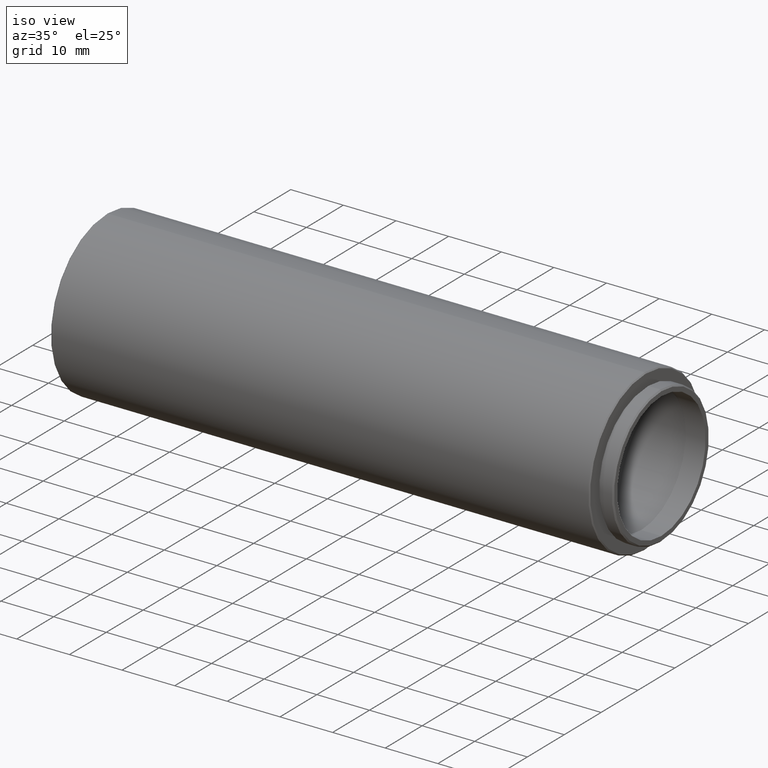
[diagram: clean part render]
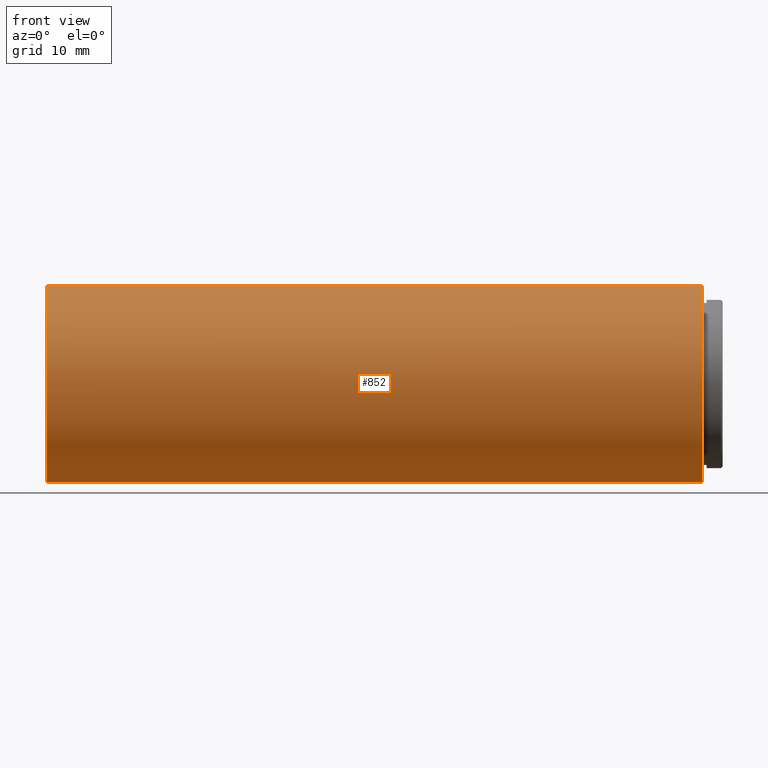
[diagram: tour spotlight — one face highlighted and labeled with its STEP entity id]
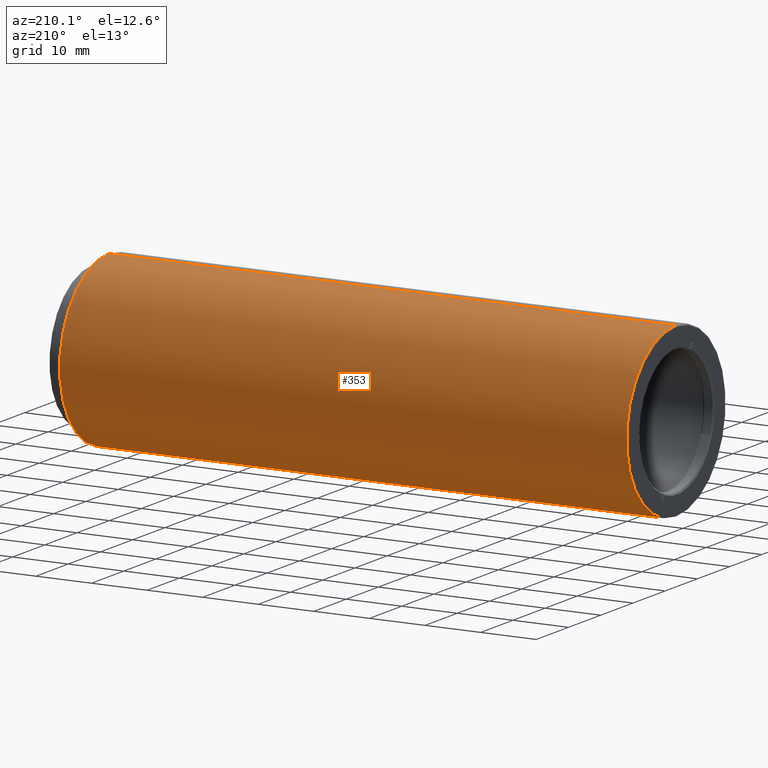
[diagram: tour spotlight — one face highlighted and labeled with its STEP entity id]
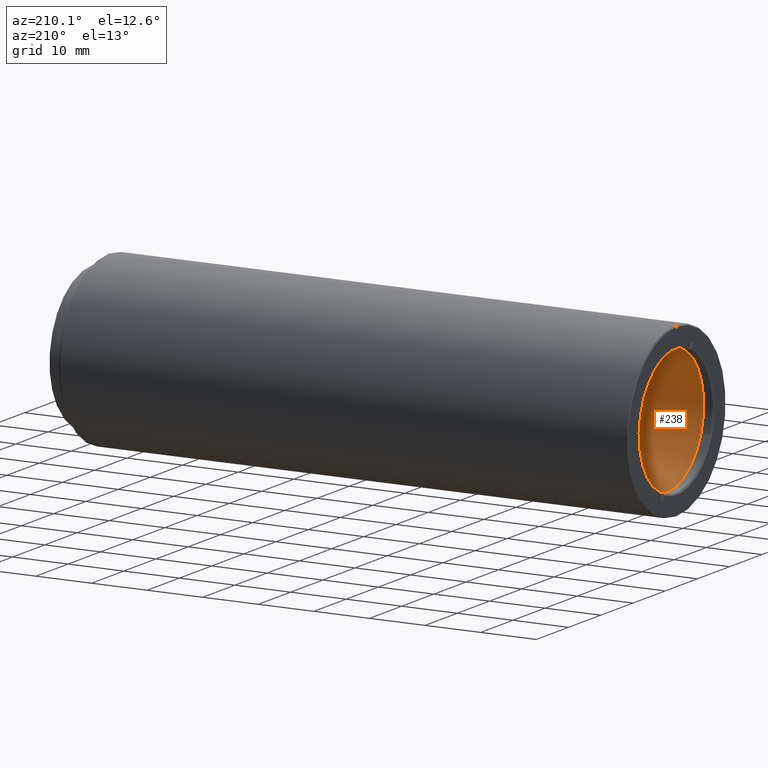
[diagram: tour spotlight — one face highlighted and labeled with its STEP entity id]
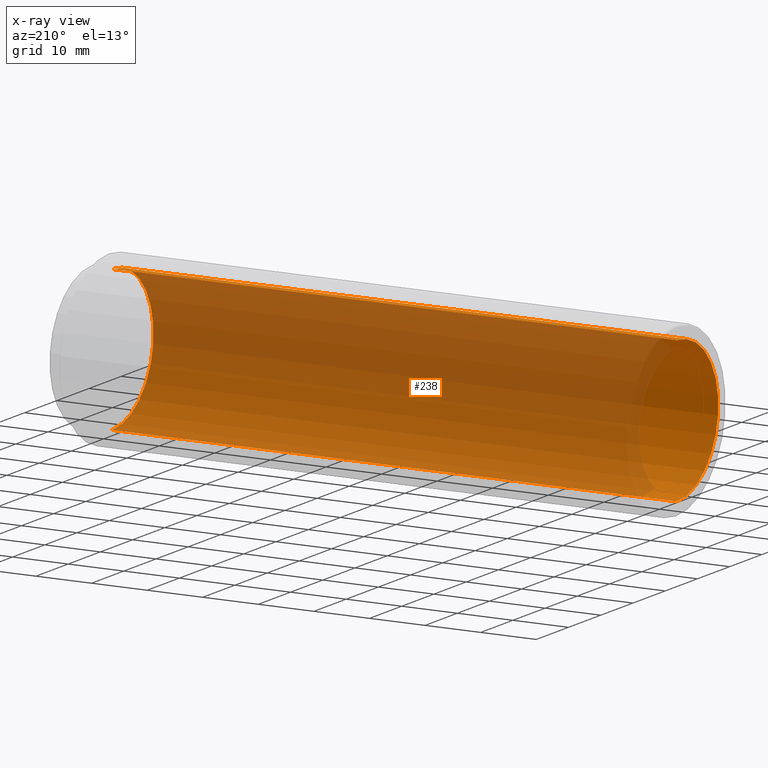
[diagram: x-ray of the same camera — body ghosted, this tour face saturated]
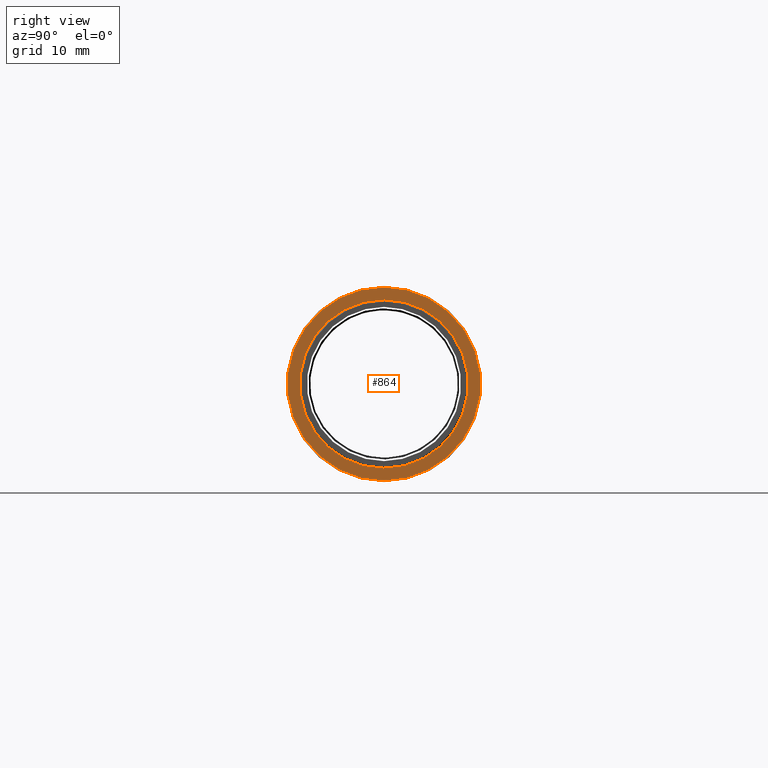
[diagram: tour spotlight — one face highlighted and labeled with its STEP entity id]
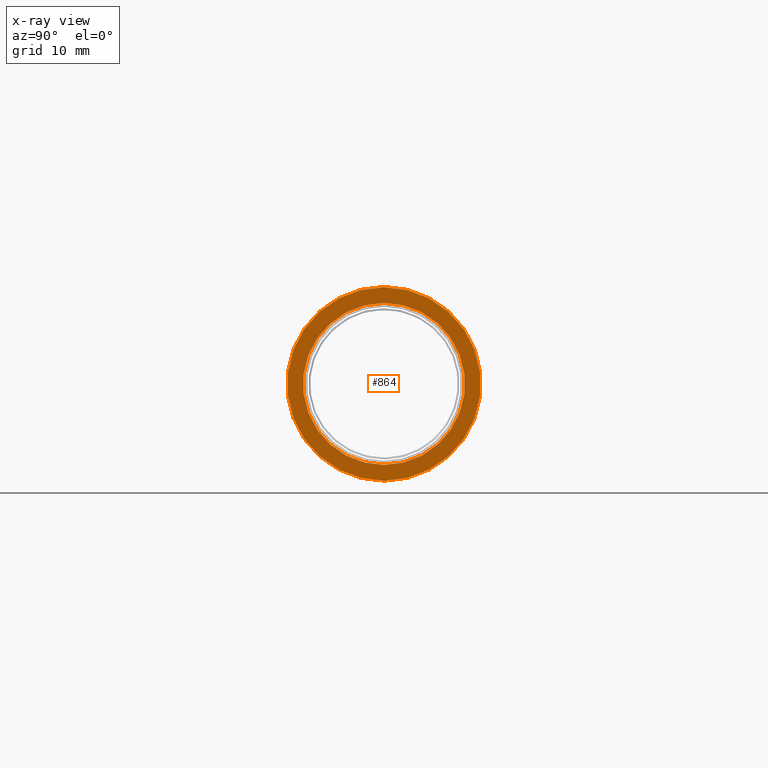
[diagram: x-ray of the same camera — body ghosted, this tour face saturated]
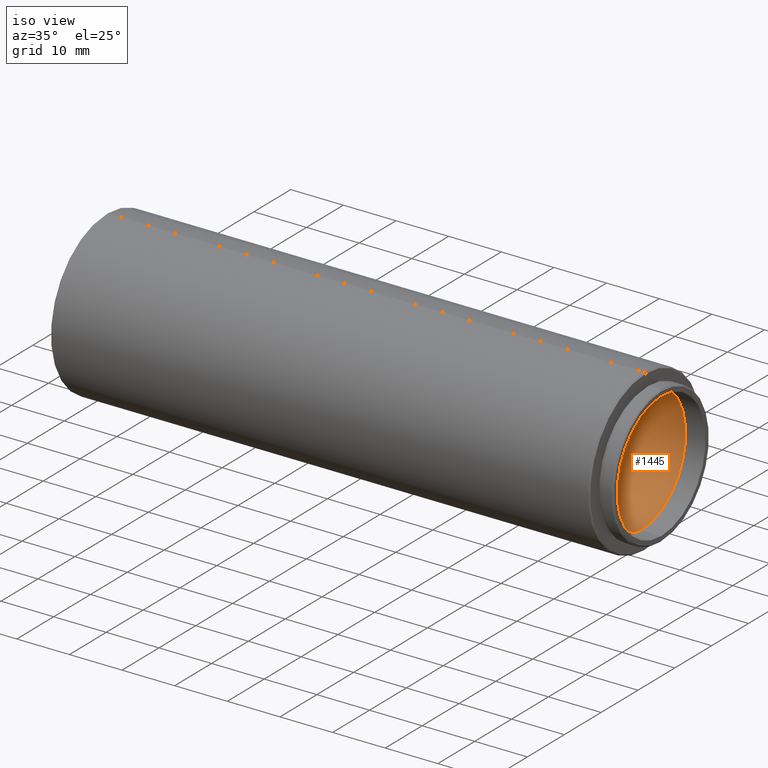
[diagram: tour spotlight — one face highlighted and labeled with its STEP entity id]
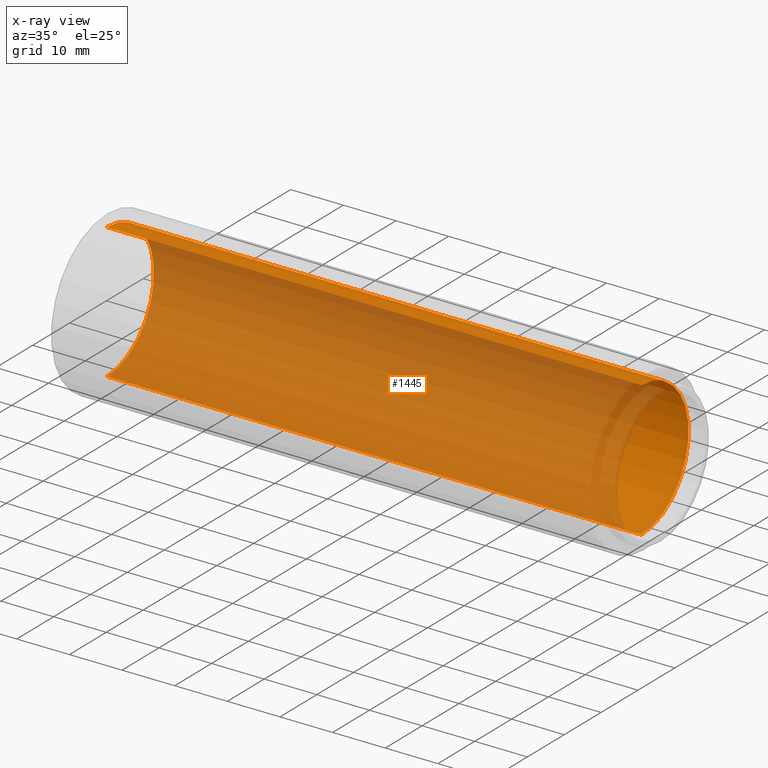
[diagram: x-ray of the same camera — body ghosted, this tour face saturated]
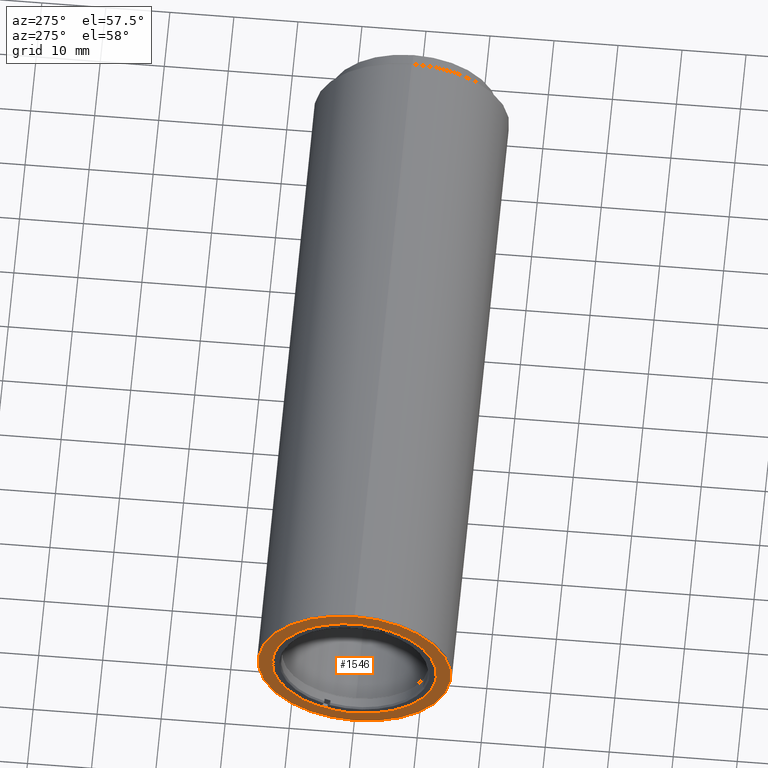
[diagram: tour spotlight — one face highlighted and labeled with its STEP entity id]
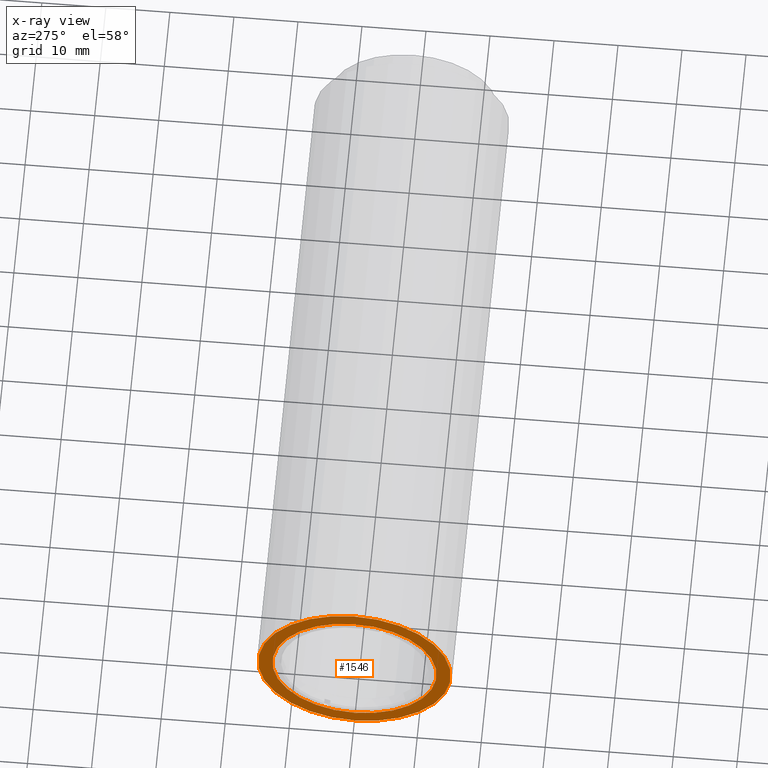
[diagram: x-ray of the same camera — body ghosted, this tour face saturated]
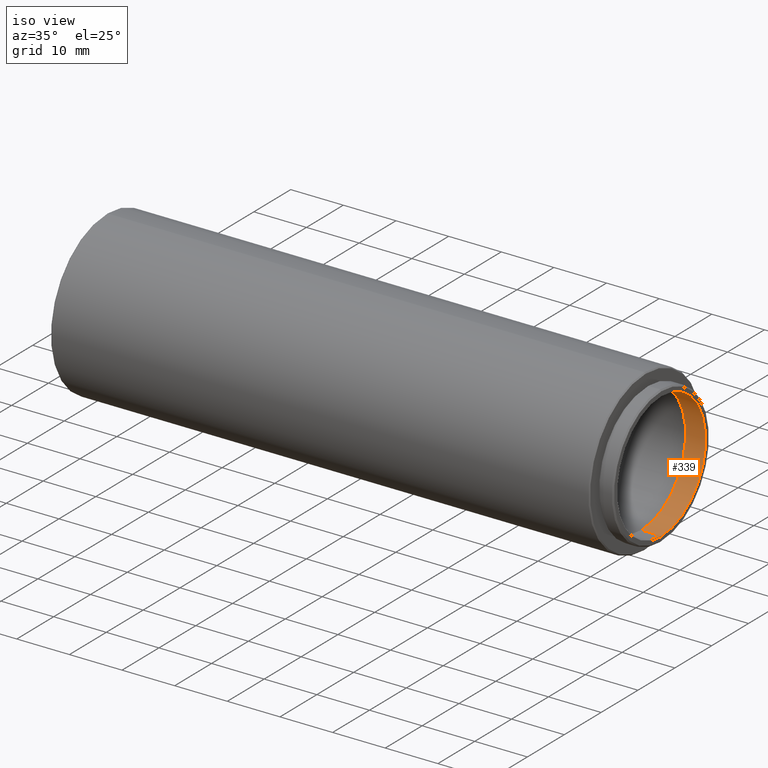
[diagram: tour spotlight — one face highlighted and labeled with its STEP entity id]
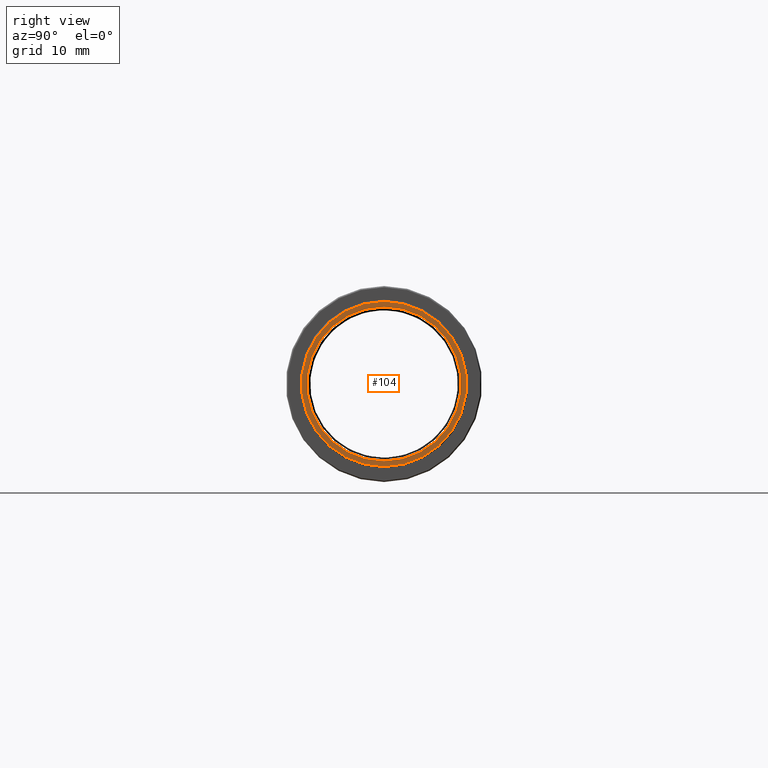
[diagram: tour spotlight — one face highlighted and labeled with its STEP entity id]
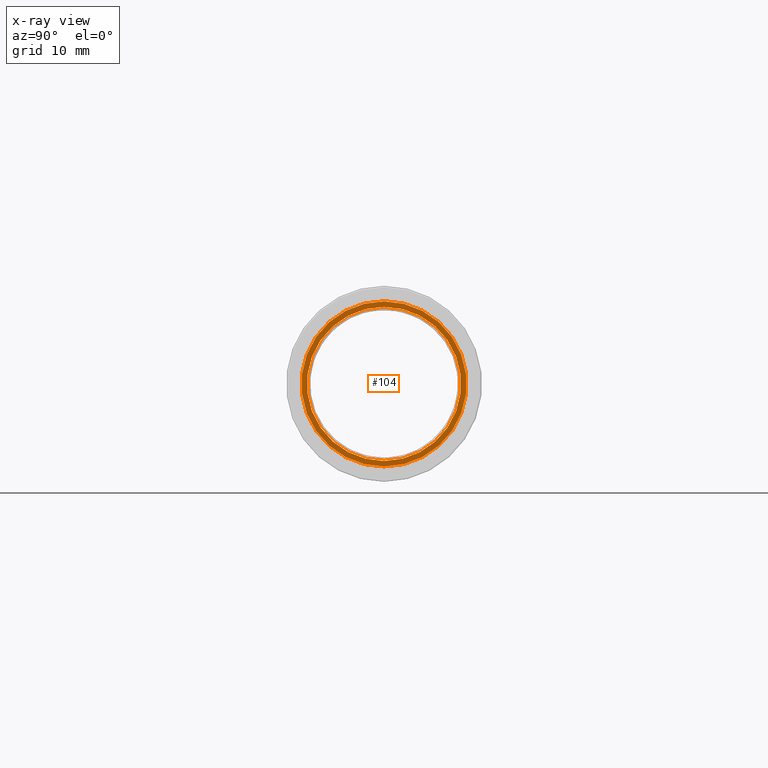
[diagram: x-ray of the same camera — body ghosted, this tour face saturated]
A machine part: a face-by-face anatomy tour. The part has 34 B-rep faces; the first image is the clean iso view, then the 8 largest visible faces are spotlighted one at a time (largest first), each with its STEP entity span.

Face 1 — front view, entity #852. In plain terms, the highlighted cylindrical surface (partial cylindrical patch) has radius 15.25 mm, axis along (-1, -0, -0).
Definition (entity closure, byte-faithful):
#35 = EDGE_CURVE ( 'NONE', #1018, #506, #1449, .T. ) ;
#115 = ORIENTED_EDGE ( 'NONE', *, *, #303, .T. ) ;
#116 = ORIENTED_EDGE ( 'NONE', *, *, #350, .T. ) ;
#136 = CARTESIAN_POINT ( 'NONE',  ( 3.325999999999985857, -20.10857142857141611, -15.25000000000000000 ) ) ;
#246 = CARTESIAN_POINT ( 'NONE',  ( -98.67400000000000659, -20.10857142857141966, 0.000000000000000000 ) ) ;
#303 = EDGE_CURVE ( 'NONE', #506, #480, #826, .T. ) ;
#350 = EDGE_CURVE ( 'NONE', #1398, #1018, #500, .T. ) ;
#351 = DIRECTION ( 'NONE',  ( -1.000000000000000000, -0.000000000000000000, -0.000000000000000000 ) ) ;
#411 = DIRECTION ( 'NONE',  ( -1.000000000000000000, -0.000000000000000000, -0.000000000000000000 ) ) ;
#480 = VERTEX_POINT ( 'NONE', #632 ) ;
#500 = CIRCLE ( 'NONE', #570, 15.25000000000000000 ) ;
#501 = EDGE_CURVE ( 'NONE', #1398, #480, #533, .T. ) ;
#506 = VERTEX_POINT ( 'NONE', #1374 ) ;
#530 = CARTESIAN_POINT ( 'NONE',  ( 3.325999999999985857, -20.10857142857141966, 15.25000000000000000 ) ) ;
#533 = LINE ( 'NONE', #769, #1353 ) ;
#570 = AXIS2_PLACEMENT_3D ( 'NONE', #735, #961, #1454 ) ;
#585 = CYLINDRICAL_SURFACE ( 'NONE', #667, 15.25000000000000000 ) ;
#610 = EDGE_LOOP ( 'NONE', ( #633, #116, #646, #115 ) ) ;
#632 = CARTESIAN_POINT ( 'NONE',  ( -98.67400000000000659, -20.10857142857141966, -15.25000000000000000 ) ) ;
#633 = ORIENTED_EDGE ( 'NONE', *, *, #501, .F. ) ;
#646 = ORIENTED_EDGE ( 'NONE', *, *, #35, .T. ) ;
#667 = AXIS2_PLACEMENT_3D ( 'NONE', #1208, #351, #1448 ) ;
#719 = DIRECTION ( 'NONE',  ( 1.000000000000000000, 0.000000000000000000, 0.000000000000000000 ) ) ;
#735 = CARTESIAN_POINT ( 'NONE',  ( 3.325999999999985857, -20.10857142857141966, 0.000000000000000000 ) ) ;
#769 = CARTESIAN_POINT ( 'NONE',  ( 3.525999999999982926, -20.10857142857141611, -15.25000000000000000 ) ) ;
#826 = CIRCLE ( 'NONE', #1098, 15.25000000000000000 ) ;
#852 = ADVANCED_FACE ( 'NONE', ( #1327 ), #585, .T. ) ;
#855 = DIRECTION ( 'NONE',  ( 0.000000000000000000, 0.000000000000000000, 1.000000000000000000 ) ) ;
#887 = VECTOR ( 'NONE', #411, 1000.000000000000000 ) ;
#961 = DIRECTION ( 'NONE',  ( -1.000000000000000000, 0.000000000000000000, 0.000000000000000000 ) ) ;
#1018 = VERTEX_POINT ( 'NONE', #530 ) ;
#1098 = AXIS2_PLACEMENT_3D ( 'NONE', #246, #719, #855 ) ;
#1119 = DIRECTION ( 'NONE',  ( -1.000000000000000000, -0.000000000000000000, -0.000000000000000000 ) ) ;
#1208 = CARTESIAN_POINT ( 'NONE',  ( 3.525999999999982926, -20.10857142857141966, 0.000000000000000000 ) ) ;
#1272 = CARTESIAN_POINT ( 'NONE',  ( 3.525999999999982926, -20.10857142857141966, 15.25000000000000000 ) ) ;
#1327 = FACE_OUTER_BOUND ( 'NONE', #610, .T. ) ;
#1353 = VECTOR ( 'NONE', #1119, 1000.000000000000000 ) ;
#1374 = CARTESIAN_POINT ( 'NONE',  ( -98.67400000000000659, -20.10857142857141611, 15.25000000000000000 ) ) ;
#1398 = VERTEX_POINT ( 'NONE', #136 ) ;
#1448 = DIRECTION ( 'NONE',  ( 0.000000000000000000, 0.000000000000000000, 1.000000000000000000 ) ) ;
#1449 = LINE ( 'NONE', #1272, #887 ) ;
#1454 = DIRECTION ( 'NONE',  ( 0.000000000000000000, 0.000000000000000000, -1.000000000000000000 ) ) ;

Face 2 — auxiliary view, entity #353. In plain terms, the highlighted cylindrical surface (partial cylindrical patch) has radius 15.25 mm, axis along (-1, -0, -0).
Definition (entity closure, byte-faithful):
#35 = EDGE_CURVE ( 'NONE', #1018, #506, #1449, .T. ) ;
#41 = DIRECTION ( 'NONE',  ( 1.000000000000000000, 0.000000000000000000, 0.000000000000000000 ) ) ;
#83 = EDGE_CURVE ( 'NONE', #480, #506, #1114, .T. ) ;
#109 = DIRECTION ( 'NONE',  ( 0.000000000000000000, 0.000000000000000000, 1.000000000000000000 ) ) ;
#121 = AXIS2_PLACEMENT_3D ( 'NONE', #730, #1085, #109 ) ;
#136 = CARTESIAN_POINT ( 'NONE',  ( 3.325999999999985857, -20.10857142857141611, -15.25000000000000000 ) ) ;
#142 = AXIS2_PLACEMENT_3D ( 'NONE', #1244, #41, #876 ) ;
#286 = DIRECTION ( 'NONE',  ( -1.000000000000000000, 0.000000000000000000, 0.000000000000000000 ) ) ;
#353 = ADVANCED_FACE ( 'NONE', ( #1533 ), #1131, .T. ) ;
#411 = DIRECTION ( 'NONE',  ( -1.000000000000000000, -0.000000000000000000, -0.000000000000000000 ) ) ;
#466 = ORIENTED_EDGE ( 'NONE', *, *, #35, .F. ) ;
#480 = VERTEX_POINT ( 'NONE', #632 ) ;
#501 = EDGE_CURVE ( 'NONE', #1398, #480, #533, .T. ) ;
#506 = VERTEX_POINT ( 'NONE', #1374 ) ;
#521 = EDGE_CURVE ( 'NONE', #1018, #1398, #1149, .T. ) ;
#530 = CARTESIAN_POINT ( 'NONE',  ( 3.325999999999985857, -20.10857142857141966, 15.25000000000000000 ) ) ;
#533 = LINE ( 'NONE', #769, #1353 ) ;
#632 = CARTESIAN_POINT ( 'NONE',  ( -98.67400000000000659, -20.10857142857141966, -15.25000000000000000 ) ) ;
#644 = ORIENTED_EDGE ( 'NONE', *, *, #501, .T. ) ;
#730 = CARTESIAN_POINT ( 'NONE',  ( 3.525999999999982926, -20.10857142857141966, 0.000000000000000000 ) ) ;
#769 = CARTESIAN_POINT ( 'NONE',  ( 3.525999999999982926, -20.10857142857141611, -15.25000000000000000 ) ) ;
#851 = ORIENTED_EDGE ( 'NONE', *, *, #521, .T. ) ;
#876 = DIRECTION ( 'NONE',  ( 0.000000000000000000, 0.000000000000000000, 1.000000000000000000 ) ) ;
#887 = VECTOR ( 'NONE', #411, 1000.000000000000000 ) ;
#898 = DIRECTION ( 'NONE',  ( 0.000000000000000000, 0.000000000000000000, -1.000000000000000000 ) ) ;
#1018 = VERTEX_POINT ( 'NONE', #530 ) ;
#1085 = DIRECTION ( 'NONE',  ( -1.000000000000000000, -0.000000000000000000, -0.000000000000000000 ) ) ;
#1114 = CIRCLE ( 'NONE', #142, 15.25000000000000000 ) ;
#1119 = DIRECTION ( 'NONE',  ( -1.000000000000000000, -0.000000000000000000, -0.000000000000000000 ) ) ;
#1131 = CYLINDRICAL_SURFACE ( 'NONE', #121, 15.25000000000000000 ) ;
#1149 = CIRCLE ( 'NONE', #1300, 15.25000000000000000 ) ;
#1244 = CARTESIAN_POINT ( 'NONE',  ( -98.67400000000000659, -20.10857142857141966, 0.000000000000000000 ) ) ;
#1264 = EDGE_LOOP ( 'NONE', ( #851, #644, #1498, #466 ) ) ;
#1272 = CARTESIAN_POINT ( 'NONE',  ( 3.525999999999982926, -20.10857142857141966, 15.25000000000000000 ) ) ;
#1283 = CARTESIAN_POINT ( 'NONE',  ( 3.325999999999985857, -20.10857142857141966, 0.000000000000000000 ) ) ;
#1300 = AXIS2_PLACEMENT_3D ( 'NONE', #1283, #286, #898 ) ;
#1353 = VECTOR ( 'NONE', #1119, 1000.000000000000000 ) ;
#1374 = CARTESIAN_POINT ( 'NONE',  ( -98.67400000000000659, -20.10857142857141611, 15.25000000000000000 ) ) ;
#1398 = VERTEX_POINT ( 'NONE', #136 ) ;
#1449 = LINE ( 'NONE', #1272, #887 ) ;
#1498 = ORIENTED_EDGE ( 'NONE', *, *, #83, .T. ) ;
#1533 = FACE_OUTER_BOUND ( 'NONE', #1264, .T. ) ;

Face 3 — auxiliary view, entity #238. An x-ray twin of the same camera follows (body ghosted, this face saturated) — the face is partly hidden behind the body. In plain terms, the highlighted cylindrical surface (partial cylindrical patch) has radius 12.827 mm, axis along (1, -0, -0).
Definition (entity closure, byte-faithful):
#16 = EDGE_LOOP ( 'NONE', ( #526, #977, #833, #257 ) ) ;
#57 = CARTESIAN_POINT ( 'NONE',  ( -98.87400000000002365, -20.10857142857141966, -12.82699999999999818 ) ) ;
#143 = DIRECTION ( 'NONE',  ( -1.000000000000000000, 0.000000000000000000, 0.000000000000000000 ) ) ;
#149 = CARTESIAN_POINT ( 'NONE',  ( -98.87400000000002365, -20.10857142857141966, 12.82699999999999818 ) ) ;
#156 = VERTEX_POINT ( 'NONE', #1407 ) ;
#231 = DIRECTION ( 'NONE',  ( 1.000000000000000000, -0.000000000000000000, -0.000000000000000000 ) ) ;
#238 = ADVANCED_FACE ( 'NONE', ( #441 ), #786, .F. ) ;
#257 = ORIENTED_EDGE ( 'NONE', *, *, #412, .F. ) ;
#331 = CARTESIAN_POINT ( 'NONE',  ( -98.87400000000002365, -20.10857142857141966, 0.000000000000000000 ) ) ;
#361 = CARTESIAN_POINT ( 'NONE',  ( -98.87400000000002365, -20.10857142857141966, 12.82699999999999818 ) ) ;
#388 = LINE ( 'NONE', #149, #1001 ) ;
#404 = AXIS2_PLACEMENT_3D ( 'NONE', #331, #707, #827 ) ;
#412 = EDGE_CURVE ( 'NONE', #1196, #886, #763, .T. ) ;
#438 = CIRCLE ( 'NONE', #1077, 12.82699999999999818 ) ;
#441 = FACE_OUTER_BOUND ( 'NONE', #16, .T. ) ;
#459 = EDGE_CURVE ( 'NONE', #886, #156, #438, .T. ) ;
#474 = CIRCLE ( 'NONE', #589, 12.82699999999999818 ) ;
#526 = ORIENTED_EDGE ( 'NONE', *, *, #821, .T. ) ;
#579 = CARTESIAN_POINT ( 'NONE',  ( -98.87400000000002365, -20.10857142857141966, 0.000000000000000000 ) ) ;
#589 = AXIS2_PLACEMENT_3D ( 'NONE', #579, #1544, #831 ) ;
#639 = CARTESIAN_POINT ( 'NONE',  ( 2.725999999999982659, -20.10857142857141966, 0.000000000000000000 ) ) ;
#707 = DIRECTION ( 'NONE',  ( 1.000000000000000000, -0.000000000000000000, -0.000000000000000000 ) ) ;
#742 = CARTESIAN_POINT ( 'NONE',  ( -98.87400000000002365, -20.10857142857141966, -12.82699999999999818 ) ) ;
#763 = LINE ( 'NONE', #742, #1054 ) ;
#786 = CYLINDRICAL_SURFACE ( 'NONE', #404, 12.82699999999999818 ) ;
#821 = EDGE_CURVE ( 'NONE', #1196, #888, #474, .T. ) ;
#827 = DIRECTION ( 'NONE',  ( 0.000000000000000000, 0.000000000000000000, -1.000000000000000000 ) ) ;
#831 = DIRECTION ( 'NONE',  ( 0.000000000000000000, 0.000000000000000000, 1.000000000000000000 ) ) ;
#833 = ORIENTED_EDGE ( 'NONE', *, *, #459, .F. ) ;
#886 = VERTEX_POINT ( 'NONE', #1110 ) ;
#888 = VERTEX_POINT ( 'NONE', #361 ) ;
#977 = ORIENTED_EDGE ( 'NONE', *, *, #1509, .T. ) ;
#1001 = VECTOR ( 'NONE', #1275, 1000.000000000000000 ) ;
#1054 = VECTOR ( 'NONE', #231, 1000.000000000000000 ) ;
#1077 = AXIS2_PLACEMENT_3D ( 'NONE', #639, #143, #1359 ) ;
#1110 = CARTESIAN_POINT ( 'NONE',  ( 2.725999999999982659, -20.10857142857141966, -12.82699999999999818 ) ) ;
#1196 = VERTEX_POINT ( 'NONE', #57 ) ;
#1275 = DIRECTION ( 'NONE',  ( 1.000000000000000000, -0.000000000000000000, -0.000000000000000000 ) ) ;
#1359 = DIRECTION ( 'NONE',  ( 0.000000000000000000, 0.000000000000000000, 1.000000000000000000 ) ) ;
#1407 = CARTESIAN_POINT ( 'NONE',  ( 2.725999999999982659, -20.10857142857141966, 12.82699999999999818 ) ) ;
#1509 = EDGE_CURVE ( 'NONE', #888, #156, #388, .T. ) ;
#1544 = DIRECTION ( 'NONE',  ( -1.000000000000000000, 0.000000000000000000, 0.000000000000000000 ) ) ;

Face 4 — right view, entity #864. An x-ray twin of the same camera follows (body ghosted, this face saturated) — the face is partly hidden behind the body. In plain terms, the highlighted planar face has unit normal (1, 0, 0).
Definition (entity closure, byte-faithful):
#6 = DIRECTION ( 'NONE',  ( 0.000000000000000000, 0.000000000000000000, -1.000000000000000000 ) ) ;
#8 = EDGE_CURVE ( 'NONE', #1502, #330, #346, .T. ) ;
#32 = ORIENTED_EDGE ( 'NONE', *, *, #1332, .F. ) ;
#129 = DIRECTION ( 'NONE',  ( 0.000000000000000000, 0.000000000000000000, -1.000000000000000000 ) ) ;
#175 = DIRECTION ( 'NONE',  ( 1.000000000000000000, 0.000000000000000000, 0.000000000000000000 ) ) ;
#202 = AXIS2_PLACEMENT_3D ( 'NONE', #281, #905, #423 ) ;
#245 = DIRECTION ( 'NONE',  ( 1.000000000000000000, 0.000000000000000000, 0.000000000000000000 ) ) ;
#254 = ORIENTED_EDGE ( 'NONE', *, *, #1065, .F. ) ;
#268 = FACE_BOUND ( 'NONE', #924, .T. ) ;
#281 = CARTESIAN_POINT ( 'NONE',  ( 3.525999999999982926, -20.10857142857141966, 0.000000000000000000 ) ) ;
#330 = VERTEX_POINT ( 'NONE', #1220 ) ;
#346 = CIRCLE ( 'NONE', #1553, 15.04999999999999361 ) ;
#397 = DIRECTION ( 'NONE',  ( 0.000000000000000000, 0.000000000000000000, -1.000000000000000000 ) ) ;
#423 = DIRECTION ( 'NONE',  ( 0.000000000000000000, 0.000000000000000000, -1.000000000000000000 ) ) ;
#495 = DIRECTION ( 'NONE',  ( 1.000000000000000000, 0.000000000000000000, 0.000000000000000000 ) ) ;
#556 = AXIS2_PLACEMENT_3D ( 'NONE', #975, #245, #129 ) ;
#587 = EDGE_CURVE ( 'NONE', #330, #1502, #680, .T. ) ;
#590 = EDGE_LOOP ( 'NONE', ( #1117, #725 ) ) ;
#641 = FACE_OUTER_BOUND ( 'NONE', #590, .T. ) ;
#680 = CIRCLE ( 'NONE', #202, 15.04999999999999361 ) ;
#725 = ORIENTED_EDGE ( 'NONE', *, *, #8, .T. ) ;
#805 = AXIS2_PLACEMENT_3D ( 'NONE', #1014, #1138, #397 ) ;
#847 = CARTESIAN_POINT ( 'NONE',  ( 3.525999999999982926, -20.10857142857141966, -12.60000000000000142 ) ) ;
#849 = VERTEX_POINT ( 'NONE', #1558 ) ;
#864 = ADVANCED_FACE ( 'NONE', ( #641, #268 ), #1582, .T. ) ;
#897 = CARTESIAN_POINT ( 'NONE',  ( 3.525999999999982926, -20.10857142857141611, -15.04999999999999361 ) ) ;
#905 = DIRECTION ( 'NONE',  ( 1.000000000000000000, 0.000000000000000000, 0.000000000000000000 ) ) ;
#924 = EDGE_LOOP ( 'NONE', ( #32, #254 ) ) ;
#975 = CARTESIAN_POINT ( 'NONE',  ( 3.525999999999982926, -20.10857142857141966, 0.000000000000000000 ) ) ;
#1014 = CARTESIAN_POINT ( 'NONE',  ( 3.525999999999982926, -20.10857142857141966, 0.000000000000000000 ) ) ;
#1065 = EDGE_CURVE ( 'NONE', #1213, #849, #1326, .T. ) ;
#1116 = DIRECTION ( 'NONE',  ( 0.000000000000000000, 0.000000000000000000, -1.000000000000000000 ) ) ;
#1117 = ORIENTED_EDGE ( 'NONE', *, *, #587, .T. ) ;
#1138 = DIRECTION ( 'NONE',  ( 1.000000000000000000, 0.000000000000000000, 0.000000000000000000 ) ) ;
#1155 = CARTESIAN_POINT ( 'NONE',  ( 3.525999999999982926, -20.10857142857141966, 0.000000000000000000 ) ) ;
#1213 = VERTEX_POINT ( 'NONE', #847 ) ;
#1220 = CARTESIAN_POINT ( 'NONE',  ( 3.525999999999982926, -20.10857142857141966, 15.04999999999999361 ) ) ;
#1326 = CIRCLE ( 'NONE', #805, 12.60000000000000142 ) ;
#1332 = EDGE_CURVE ( 'NONE', #849, #1213, #1364, .T. ) ;
#1351 = CARTESIAN_POINT ( 'NONE',  ( 3.525999999999982926, -20.10857142857141966, 0.000000000000000000 ) ) ;
#1364 = CIRCLE ( 'NONE', #556, 12.60000000000000142 ) ;
#1409 = AXIS2_PLACEMENT_3D ( 'NONE', #1351, #495, #1116 ) ;
#1502 = VERTEX_POINT ( 'NONE', #897 ) ;
#1553 = AXIS2_PLACEMENT_3D ( 'NONE', #1155, #175, #6 ) ;
#1558 = CARTESIAN_POINT ( 'NONE',  ( 3.525999999999982926, -20.10857142857141966, 12.60000000000000142 ) ) ;
#1582 = PLANE ( 'NONE',  #1409 ) ;

Face 5 — iso view, entity #1445. An x-ray twin of the same camera follows (body ghosted, this face saturated) — the face is partly hidden behind the body. In plain terms, the highlighted cylindrical surface (partial cylindrical patch) has radius 12.827 mm, axis along (1, -0, -0).
Definition (entity closure, byte-faithful):
#21 = CARTESIAN_POINT ( 'NONE',  ( -98.87400000000002365, -20.10857142857141966, 0.000000000000000000 ) ) ;
#51 = ORIENTED_EDGE ( 'NONE', *, *, #470, .F. ) ;
#57 = CARTESIAN_POINT ( 'NONE',  ( -98.87400000000002365, -20.10857142857141966, -12.82699999999999818 ) ) ;
#88 = CIRCLE ( 'NONE', #1455, 12.82699999999999818 ) ;
#92 = ORIENTED_EDGE ( 'NONE', *, *, #412, .T. ) ;
#117 = ORIENTED_EDGE ( 'NONE', *, *, #1277, .T. ) ;
#149 = CARTESIAN_POINT ( 'NONE',  ( -98.87400000000002365, -20.10857142857141966, 12.82699999999999818 ) ) ;
#156 = VERTEX_POINT ( 'NONE', #1407 ) ;
#231 = DIRECTION ( 'NONE',  ( 1.000000000000000000, -0.000000000000000000, -0.000000000000000000 ) ) ;
#272 = ORIENTED_EDGE ( 'NONE', *, *, #1509, .F. ) ;
#361 = CARTESIAN_POINT ( 'NONE',  ( -98.87400000000002365, -20.10857142857141966, 12.82699999999999818 ) ) ;
#388 = LINE ( 'NONE', #149, #1001 ) ;
#412 = EDGE_CURVE ( 'NONE', #1196, #886, #763, .T. ) ;
#470 = EDGE_CURVE ( 'NONE', #156, #886, #88, .T. ) ;
#486 = DIRECTION ( 'NONE',  ( -1.000000000000000000, 0.000000000000000000, 0.000000000000000000 ) ) ;
#599 = FACE_OUTER_BOUND ( 'NONE', #1288, .T. ) ;
#742 = CARTESIAN_POINT ( 'NONE',  ( -98.87400000000002365, -20.10857142857141966, -12.82699999999999818 ) ) ;
#758 = CARTESIAN_POINT ( 'NONE',  ( 2.725999999999982659, -20.10857142857141966, 0.000000000000000000 ) ) ;
#763 = LINE ( 'NONE', #742, #1054 ) ;
#886 = VERTEX_POINT ( 'NONE', #1110 ) ;
#888 = VERTEX_POINT ( 'NONE', #361 ) ;
#889 = DIRECTION ( 'NONE',  ( 1.000000000000000000, -0.000000000000000000, -0.000000000000000000 ) ) ;
#1001 = VECTOR ( 'NONE', #1275, 1000.000000000000000 ) ;
#1004 = DIRECTION ( 'NONE',  ( -1.000000000000000000, 0.000000000000000000, 0.000000000000000000 ) ) ;
#1054 = VECTOR ( 'NONE', #231, 1000.000000000000000 ) ;
#1110 = CARTESIAN_POINT ( 'NONE',  ( 2.725999999999982659, -20.10857142857141966, -12.82699999999999818 ) ) ;
#1118 = DIRECTION ( 'NONE',  ( 0.000000000000000000, 0.000000000000000000, 1.000000000000000000 ) ) ;
#1134 = DIRECTION ( 'NONE',  ( 0.000000000000000000, 0.000000000000000000, 1.000000000000000000 ) ) ;
#1168 = CYLINDRICAL_SURFACE ( 'NONE', #1258, 12.82699999999999818 ) ;
#1170 = CIRCLE ( 'NONE', #1556, 12.82699999999999818 ) ;
#1196 = VERTEX_POINT ( 'NONE', #57 ) ;
#1238 = CARTESIAN_POINT ( 'NONE',  ( -98.87400000000002365, -20.10857142857141966, 0.000000000000000000 ) ) ;
#1258 = AXIS2_PLACEMENT_3D ( 'NONE', #21, #889, #1490 ) ;
#1275 = DIRECTION ( 'NONE',  ( 1.000000000000000000, -0.000000000000000000, -0.000000000000000000 ) ) ;
#1277 = EDGE_CURVE ( 'NONE', #888, #1196, #1170, .T. ) ;
#1288 = EDGE_LOOP ( 'NONE', ( #272, #117, #92, #51 ) ) ;
#1407 = CARTESIAN_POINT ( 'NONE',  ( 2.725999999999982659, -20.10857142857141966, 12.82699999999999818 ) ) ;
#1445 = ADVANCED_FACE ( 'NONE', ( #599 ), #1168, .F. ) ;
#1455 = AXIS2_PLACEMENT_3D ( 'NONE', #758, #1004, #1134 ) ;
#1490 = DIRECTION ( 'NONE',  ( 0.000000000000000000, 0.000000000000000000, -1.000000000000000000 ) ) ;
#1509 = EDGE_CURVE ( 'NONE', #888, #156, #388, .T. ) ;
#1556 = AXIS2_PLACEMENT_3D ( 'NONE', #1238, #486, #1118 ) ;

Face 6 — auxiliary view, entity #1546. An x-ray twin of the same camera follows (body ghosted, this face saturated) — the face is partly hidden behind the body. In plain terms, the highlighted planar face has unit normal (-1, 0, 0).
Definition (entity closure, byte-faithful):
#37 = AXIS2_PLACEMENT_3D ( 'NONE', #429, #58, #1423 ) ;
#38 = DIRECTION ( 'NONE',  ( 0.000000000000000000, 0.000000000000000000, 1.000000000000000000 ) ) ;
#57 = CARTESIAN_POINT ( 'NONE',  ( -98.87400000000002365, -20.10857142857141966, -12.82699999999999818 ) ) ;
#58 = DIRECTION ( 'NONE',  ( -1.000000000000000000, 0.000000000000000000, 0.000000000000000000 ) ) ;
#147 = CARTESIAN_POINT ( 'NONE',  ( -98.87400000000002365, -20.10857142857141966, -15.04999999999999361 ) ) ;
#176 = ORIENTED_EDGE ( 'NONE', *, *, #699, .T. ) ;
#178 = DIRECTION ( 'NONE',  ( -1.000000000000000000, 0.000000000000000000, 0.000000000000000000 ) ) ;
#196 = ORIENTED_EDGE ( 'NONE', *, *, #821, .F. ) ;
#270 = AXIS2_PLACEMENT_3D ( 'NONE', #1518, #563, #681 ) ;
#304 = CIRCLE ( 'NONE', #37, 15.04999999999999361 ) ;
#312 = EDGE_LOOP ( 'NONE', ( #176, #1340 ) ) ;
#361 = CARTESIAN_POINT ( 'NONE',  ( -98.87400000000002365, -20.10857142857141966, 12.82699999999999818 ) ) ;
#429 = CARTESIAN_POINT ( 'NONE',  ( -98.87400000000002365, -20.10857142857141966, 0.000000000000000000 ) ) ;
#474 = CIRCLE ( 'NONE', #589, 12.82699999999999818 ) ;
#486 = DIRECTION ( 'NONE',  ( -1.000000000000000000, 0.000000000000000000, 0.000000000000000000 ) ) ;
#523 = VERTEX_POINT ( 'NONE', #147 ) ;
#563 = DIRECTION ( 'NONE',  ( -1.000000000000000000, 0.000000000000000000, 0.000000000000000000 ) ) ;
#579 = CARTESIAN_POINT ( 'NONE',  ( -98.87400000000002365, -20.10857142857141966, 0.000000000000000000 ) ) ;
#589 = AXIS2_PLACEMENT_3D ( 'NONE', #579, #1544, #831 ) ;
#626 = CIRCLE ( 'NONE', #270, 15.04999999999999361 ) ;
#654 = EDGE_CURVE ( 'NONE', #1319, #523, #304, .T. ) ;
#681 = DIRECTION ( 'NONE',  ( 0.000000000000000000, 0.000000000000000000, 1.000000000000000000 ) ) ;
#699 = EDGE_CURVE ( 'NONE', #523, #1319, #626, .T. ) ;
#821 = EDGE_CURVE ( 'NONE', #1196, #888, #474, .T. ) ;
#831 = DIRECTION ( 'NONE',  ( 0.000000000000000000, 0.000000000000000000, 1.000000000000000000 ) ) ;
#838 = CARTESIAN_POINT ( 'NONE',  ( -98.87400000000002365, -20.10857142857141611, 15.04999999999999361 ) ) ;
#840 = FACE_OUTER_BOUND ( 'NONE', #312, .T. ) ;
#888 = VERTEX_POINT ( 'NONE', #361 ) ;
#915 = CARTESIAN_POINT ( 'NONE',  ( -98.87400000000002365, -20.10857142857141966, 0.000000000000000000 ) ) ;
#1069 = AXIS2_PLACEMENT_3D ( 'NONE', #915, #178, #38 ) ;
#1118 = DIRECTION ( 'NONE',  ( 0.000000000000000000, 0.000000000000000000, 1.000000000000000000 ) ) ;
#1156 = EDGE_LOOP ( 'NONE', ( #196, #1212 ) ) ;
#1170 = CIRCLE ( 'NONE', #1556, 12.82699999999999818 ) ;
#1196 = VERTEX_POINT ( 'NONE', #57 ) ;
#1212 = ORIENTED_EDGE ( 'NONE', *, *, #1277, .F. ) ;
#1238 = CARTESIAN_POINT ( 'NONE',  ( -98.87400000000002365, -20.10857142857141966, 0.000000000000000000 ) ) ;
#1277 = EDGE_CURVE ( 'NONE', #888, #1196, #1170, .T. ) ;
#1319 = VERTEX_POINT ( 'NONE', #838 ) ;
#1340 = ORIENTED_EDGE ( 'NONE', *, *, #654, .T. ) ;
#1423 = DIRECTION ( 'NONE',  ( 0.000000000000000000, 0.000000000000000000, 1.000000000000000000 ) ) ;
#1517 = PLANE ( 'NONE',  #1069 ) ;
#1518 = CARTESIAN_POINT ( 'NONE',  ( -98.87400000000002365, -20.10857142857141966, 0.000000000000000000 ) ) ;
#1527 = FACE_BOUND ( 'NONE', #1156, .T. ) ;
#1544 = DIRECTION ( 'NONE',  ( -1.000000000000000000, 0.000000000000000000, 0.000000000000000000 ) ) ;
#1546 = ADVANCED_FACE ( 'NONE', ( #840, #1527 ), #1517, .T. ) ;
#1556 = AXIS2_PLACEMENT_3D ( 'NONE', #1238, #486, #1118 ) ;

Face 7 — iso view, entity #339. In plain terms, the highlighted cylindrical surface (partial cylindrical patch) has radius 12 mm, axis along (1, -0, -0).
Definition (entity closure, byte-faithful):
#5 = CIRCLE ( 'NONE', #1325, 12.00000000000000178 ) ;
#18 = EDGE_CURVE ( 'NONE', #1503, #1519, #708, .T. ) ;
#79 = DIRECTION ( 'NONE',  ( 0.000000000000000000, 0.000000000000000000, -1.000000000000000000 ) ) ;
#140 = CARTESIAN_POINT ( 'NONE',  ( -98.87400000000002365, -20.10857142857141966, 12.00000000000000178 ) ) ;
#168 = FACE_OUTER_BOUND ( 'NONE', #276, .T. ) ;
#227 = DIRECTION ( 'NONE',  ( 1.000000000000000000, 0.000000000000000000, 0.000000000000000000 ) ) ;
#276 = EDGE_LOOP ( 'NONE', ( #1250, #1231, #345, #573 ) ) ;
#332 = CARTESIAN_POINT ( 'NONE',  ( 6.525999999999982926, -20.10857142857141966, 0.000000000000000000 ) ) ;
#336 = CIRCLE ( 'NONE', #862, 12.00000000000000178 ) ;
#339 = ADVANCED_FACE ( 'NONE', ( #168 ), #683, .F. ) ;
#345 = ORIENTED_EDGE ( 'NONE', *, *, #912, .T. ) ;
#354 = CARTESIAN_POINT ( 'NONE',  ( 2.725999999999982659, -20.10857142857141966, -12.00000000000000178 ) ) ;
#414 = CARTESIAN_POINT ( 'NONE',  ( 2.725999999999982659, -20.10857142857141966, 12.00000000000000178 ) ) ;
#540 = VERTEX_POINT ( 'NONE', #1027 ) ;
#543 = CARTESIAN_POINT ( 'NONE',  ( 6.525999999999982926, -20.10857142857141966, 12.00000000000000178 ) ) ;
#573 = ORIENTED_EDGE ( 'NONE', *, *, #787, .T. ) ;
#597 = DIRECTION ( 'NONE',  ( 1.000000000000000000, -0.000000000000000000, -0.000000000000000000 ) ) ;
#656 = LINE ( 'NONE', #1237, #1026 ) ;
#683 = CYLINDRICAL_SURFACE ( 'NONE', #1067, 12.00000000000000178 ) ;
#708 = LINE ( 'NONE', #140, #749 ) ;
#749 = VECTOR ( 'NONE', #1000, 1000.000000000000000 ) ;
#750 = CARTESIAN_POINT ( 'NONE',  ( 2.725999999999982659, -20.10857142857141966, 0.000000000000000000 ) ) ;
#787 = EDGE_CURVE ( 'NONE', #540, #1519, #5, .T. ) ;
#862 = AXIS2_PLACEMENT_3D ( 'NONE', #750, #1365, #1488 ) ;
#912 = EDGE_CURVE ( 'NONE', #1232, #540, #656, .T. ) ;
#976 = DIRECTION ( 'NONE',  ( 0.000000000000000000, 0.000000000000000000, -1.000000000000000000 ) ) ;
#985 = DIRECTION ( 'NONE',  ( 1.000000000000000000, -0.000000000000000000, -0.000000000000000000 ) ) ;
#995 = EDGE_CURVE ( 'NONE', #1232, #1503, #336, .T. ) ;
#1000 = DIRECTION ( 'NONE',  ( 1.000000000000000000, -0.000000000000000000, -0.000000000000000000 ) ) ;
#1026 = VECTOR ( 'NONE', #985, 1000.000000000000000 ) ;
#1027 = CARTESIAN_POINT ( 'NONE',  ( 6.525999999999982926, -20.10857142857141966, -12.00000000000000178 ) ) ;
#1067 = AXIS2_PLACEMENT_3D ( 'NONE', #1335, #597, #976 ) ;
#1231 = ORIENTED_EDGE ( 'NONE', *, *, #995, .F. ) ;
#1232 = VERTEX_POINT ( 'NONE', #354 ) ;
#1237 = CARTESIAN_POINT ( 'NONE',  ( -98.87400000000002365, -20.10857142857141966, -12.00000000000000178 ) ) ;
#1250 = ORIENTED_EDGE ( 'NONE', *, *, #18, .F. ) ;
#1325 = AXIS2_PLACEMENT_3D ( 'NONE', #332, #227, #79 ) ;
#1335 = CARTESIAN_POINT ( 'NONE',  ( -98.87400000000002365, -20.10857142857141966, 0.000000000000000000 ) ) ;
#1365 = DIRECTION ( 'NONE',  ( 1.000000000000000000, 0.000000000000000000, 0.000000000000000000 ) ) ;
#1488 = DIRECTION ( 'NONE',  ( 0.000000000000000000, 0.000000000000000000, -1.000000000000000000 ) ) ;
#1503 = VERTEX_POINT ( 'NONE', #414 ) ;
#1519 = VERTEX_POINT ( 'NONE', #543 ) ;

Face 8 — right view, entity #104. An x-ray twin of the same camera follows (body ghosted, this face saturated) — the face is partly hidden behind the body. In plain terms, the highlighted planar face has unit normal (1, 0, 0).
Definition (entity closure, byte-faithful):
#5 = CIRCLE ( 'NONE', #1325, 12.00000000000000178 ) ;
#59 = PLANE ( 'NONE',  #1311 ) ;
#79 = DIRECTION ( 'NONE',  ( 0.000000000000000000, 0.000000000000000000, -1.000000000000000000 ) ) ;
#104 = ADVANCED_FACE ( 'NONE', ( #154, #310 ), #59, .T. ) ;
#122 = CARTESIAN_POINT ( 'NONE',  ( 6.525999999999982926, -20.10857142857141966, 12.84999999999999964 ) ) ;
#154 = FACE_OUTER_BOUND ( 'NONE', #865, .T. ) ;
#186 = DIRECTION ( 'NONE',  ( 0.000000000000000000, 0.000000000000000000, -1.000000000000000000 ) ) ;
#227 = DIRECTION ( 'NONE',  ( 1.000000000000000000, 0.000000000000000000, 0.000000000000000000 ) ) ;
#229 = CARTESIAN_POINT ( 'NONE',  ( 6.525999999999982926, -20.10857142857141966, 0.000000000000000000 ) ) ;
#310 = FACE_BOUND ( 'NONE', #558, .T. ) ;
#332 = CARTESIAN_POINT ( 'NONE',  ( 6.525999999999982926, -20.10857142857141966, 0.000000000000000000 ) ) ;
#348 = ORIENTED_EDGE ( 'NONE', *, *, #1029, .T. ) ;
#507 = ORIENTED_EDGE ( 'NONE', *, *, #787, .F. ) ;
#519 = DIRECTION ( 'NONE',  ( 0.000000000000000000, 0.000000000000000000, -1.000000000000000000 ) ) ;
#540 = VERTEX_POINT ( 'NONE', #1027 ) ;
#543 = CARTESIAN_POINT ( 'NONE',  ( 6.525999999999982926, -20.10857142857141966, 12.00000000000000178 ) ) ;
#558 = EDGE_LOOP ( 'NONE', ( #507, #978 ) ) ;
#664 = EDGE_CURVE ( 'NONE', #906, #1306, #1572, .T. ) ;
#722 = DIRECTION ( 'NONE',  ( 0.000000000000000000, 0.000000000000000000, -1.000000000000000000 ) ) ;
#734 = DIRECTION ( 'NONE',  ( 1.000000000000000000, 0.000000000000000000, 0.000000000000000000 ) ) ;
#747 = AXIS2_PLACEMENT_3D ( 'NONE', #761, #1128, #519 ) ;
#761 = CARTESIAN_POINT ( 'NONE',  ( 6.525999999999982926, -20.10857142857141966, 0.000000000000000000 ) ) ;
#787 = EDGE_CURVE ( 'NONE', #540, #1519, #5, .T. ) ;
#800 = CARTESIAN_POINT ( 'NONE',  ( 6.525999999999982926, -20.10857142857141966, 0.000000000000000000 ) ) ;
#865 = EDGE_LOOP ( 'NONE', ( #1012, #348 ) ) ;
#878 = CIRCLE ( 'NONE', #885, 12.00000000000000178 ) ;
#885 = AXIS2_PLACEMENT_3D ( 'NONE', #229, #734, #722 ) ;
#894 = CIRCLE ( 'NONE', #747, 12.84999999999999964 ) ;
#906 = VERTEX_POINT ( 'NONE', #122 ) ;
#936 = CARTESIAN_POINT ( 'NONE',  ( 6.525999999999982926, -20.10857142857141966, 0.000000000000000000 ) ) ;
#978 = ORIENTED_EDGE ( 'NONE', *, *, #1266, .F. ) ;
#1012 = ORIENTED_EDGE ( 'NONE', *, *, #664, .T. ) ;
#1027 = CARTESIAN_POINT ( 'NONE',  ( 6.525999999999982926, -20.10857142857141966, -12.00000000000000178 ) ) ;
#1029 = EDGE_CURVE ( 'NONE', #1306, #906, #894, .T. ) ;
#1042 = DIRECTION ( 'NONE',  ( 0.000000000000000000, 0.000000000000000000, -1.000000000000000000 ) ) ;
#1061 = DIRECTION ( 'NONE',  ( 1.000000000000000000, 0.000000000000000000, 0.000000000000000000 ) ) ;
#1128 = DIRECTION ( 'NONE',  ( 1.000000000000000000, 0.000000000000000000, 0.000000000000000000 ) ) ;
#1266 = EDGE_CURVE ( 'NONE', #1519, #540, #878, .T. ) ;
#1306 = VERTEX_POINT ( 'NONE', #1438 ) ;
#1311 = AXIS2_PLACEMENT_3D ( 'NONE', #800, #1400, #186 ) ;
#1325 = AXIS2_PLACEMENT_3D ( 'NONE', #332, #227, #79 ) ;
#1400 = DIRECTION ( 'NONE',  ( 1.000000000000000000, 0.000000000000000000, 0.000000000000000000 ) ) ;
#1434 = AXIS2_PLACEMENT_3D ( 'NONE', #936, #1061, #1042 ) ;
#1438 = CARTESIAN_POINT ( 'NONE',  ( 6.525999999999982926, -20.10857142857141966, -12.84999999999999964 ) ) ;
#1519 = VERTEX_POINT ( 'NONE', #543 ) ;
#1572 = CIRCLE ( 'NONE', #1434, 12.84999999999999964 ) ;